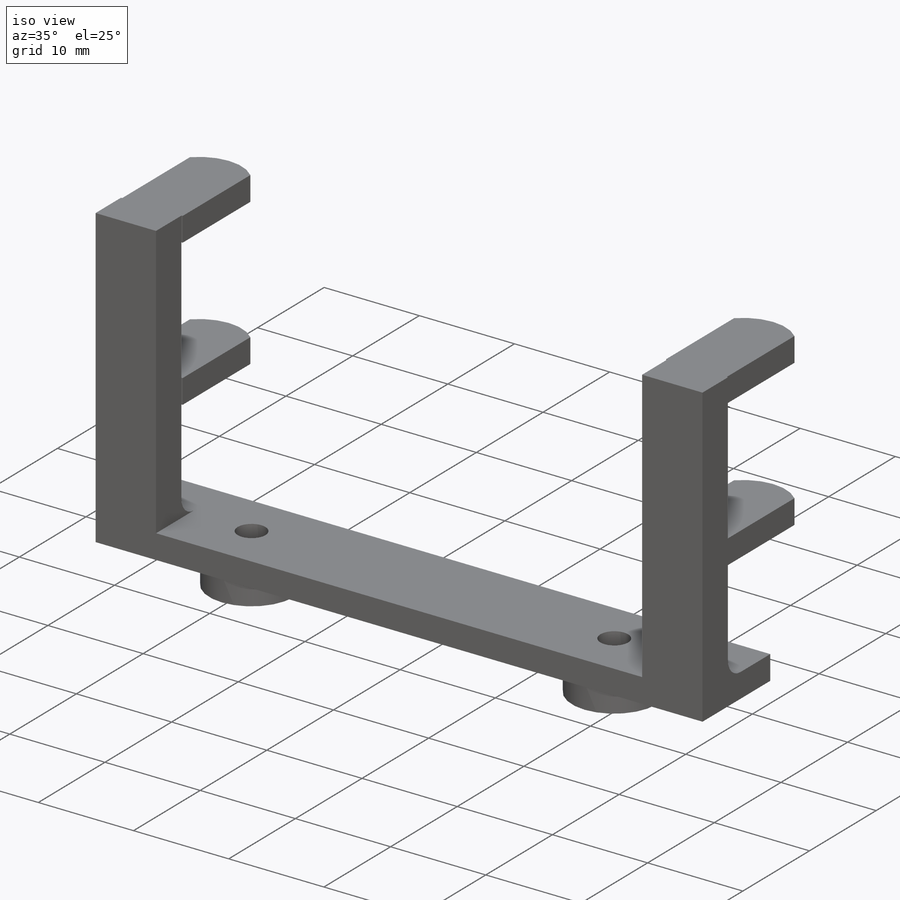
[diagram: iso view]
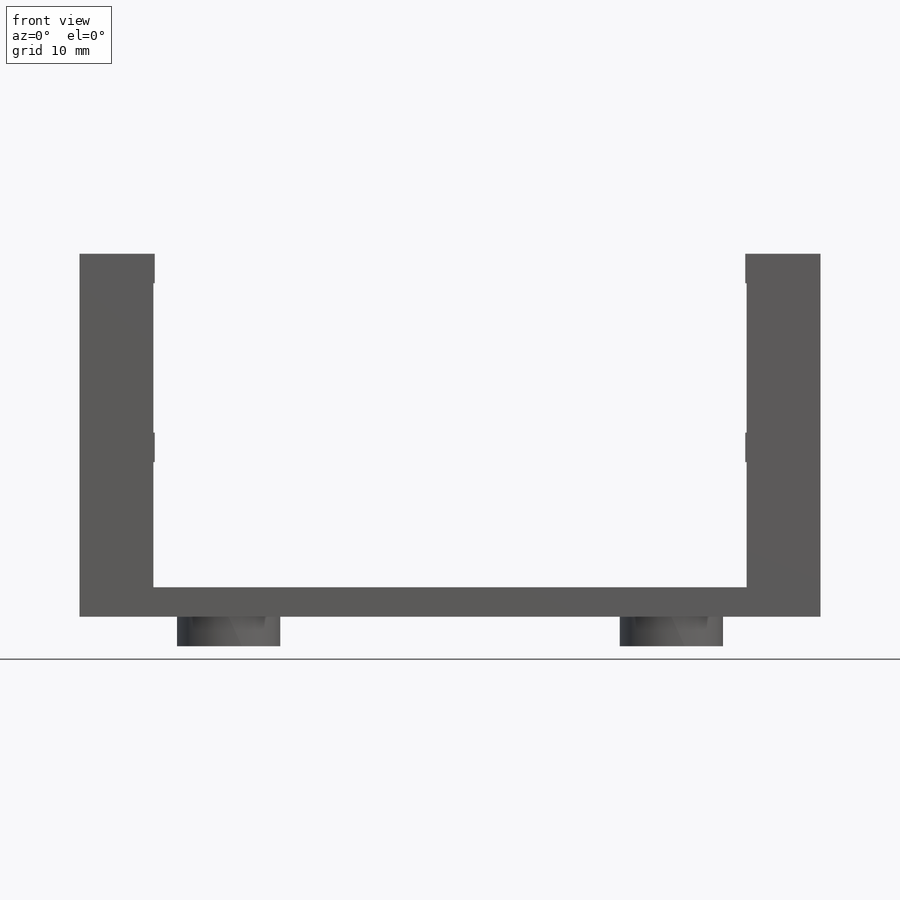
[diagram: front view]
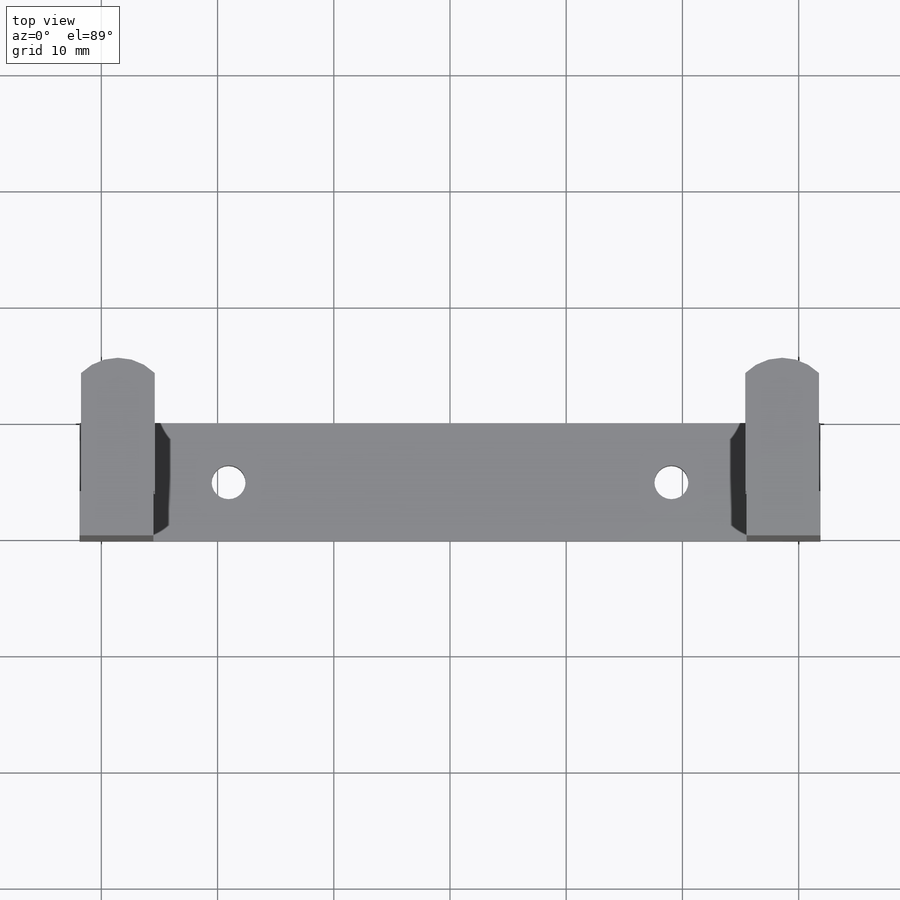
[diagram: top view]
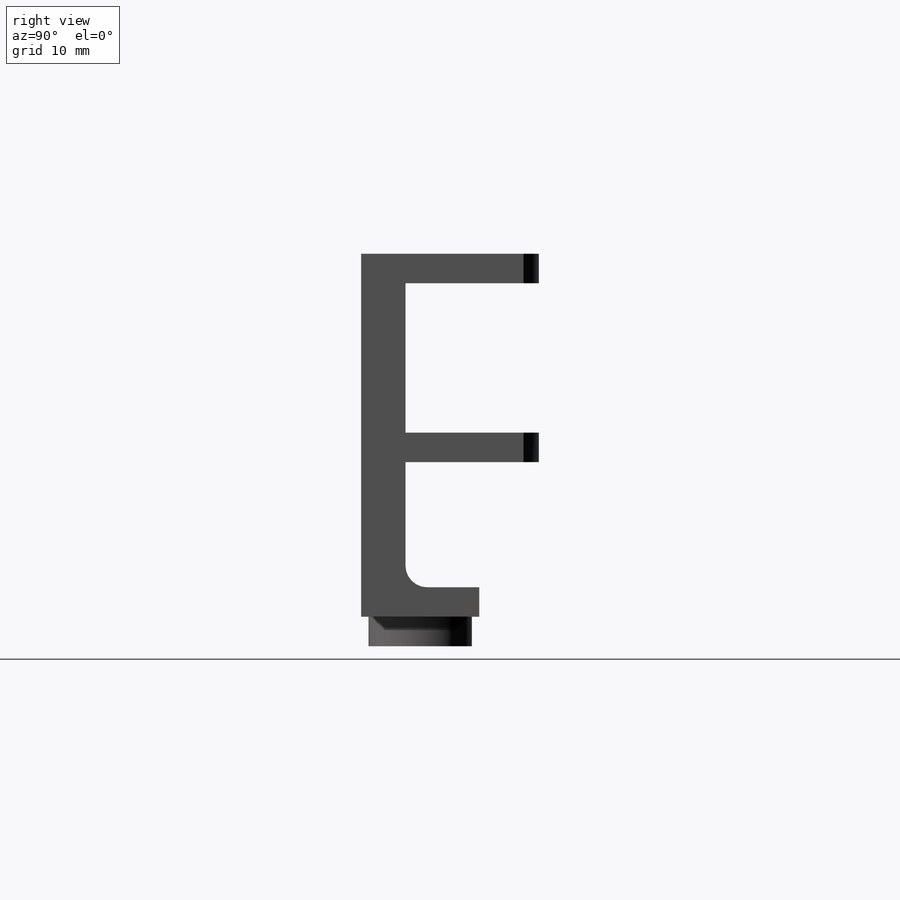
[diagram: right view]
SOLIDWORKS PART (.sldprt)
format: sldprt  version: not decoded by parser v0  size: 443,392 bytes
history: native  units: mm
features: sketch x5, extrude x3, cut_extrude x2, mirror x2, material x1, plane x1 (+13 scaffold rows collapsed)
feature tree (27):
  scaffold x13  (default folders/planes/origin — collapsed)
  material  "Material <not specified>"
  sketch  "Sketch1"  dims[D1=28.702mm D2=25.527mm D3=2.54mm D4=6.35mm]
  extrude  "Boss-Extrude1"  Depth=10.16mm
  sketch  "Sketch2"  dims[c1.D3=3.175mm c1.D1=3.175mm c1.D2=2.54mm c2.D3=2.54mm c2.D1=3.81mm c2.D2=~6.003774mm c3.D1=6.35mm]
  cut_extrude  "Cut-Extrude1"  [1 undecoded]
  sketch  "Sketch3"  dims[c1.D1=~3.813805mm c1.D2=2.921mm c2.D1=38.1mm]
  cut_extrude  "Cut-Extrude2"  Depth=6.35mm
  sketch  "Sketch5"  dims[D1=10.16mm D2=10.16mm]
  extrude  "Boss-Extrude2"  Depth=2.54mm
  plane  "Plane1"  Offset=6.4262mm
  mirror  "Mirror1"
  mirror  "Mirror2"
  sketch  "Sketch6"  dims[D1=2.921mm D2=8.89mm]
  extrude  "Boss-Extrude3"  Depth=2.54mm
decode coverage: 9 of 12 modeling features carry decoded parameters
note: ~ marks probable driven/reference dimensions
note: 1 parameter value undecoded
note: suppression state not decoded; provenance and decode notes live in map.json
